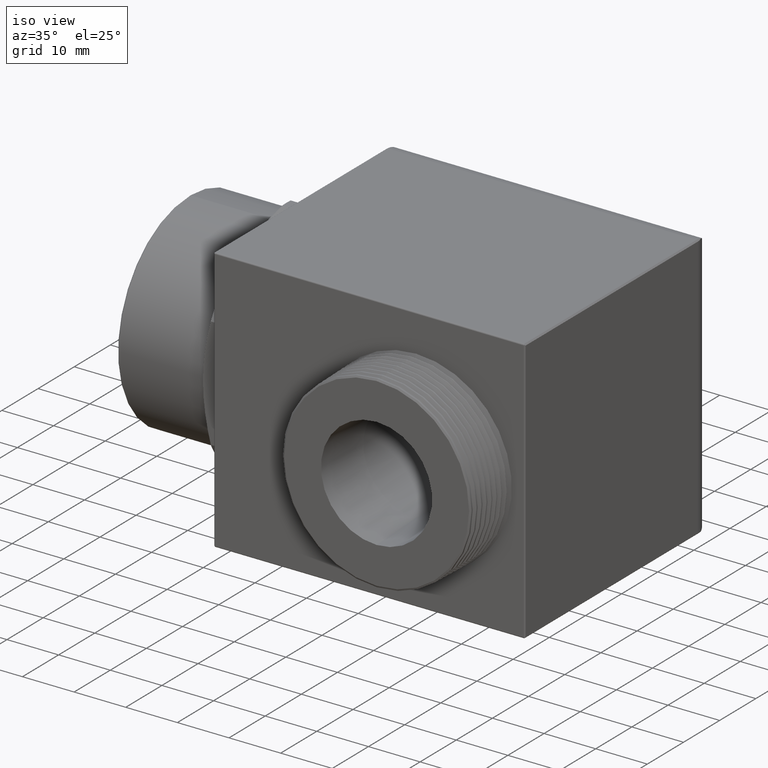
[diagram: clean part render]
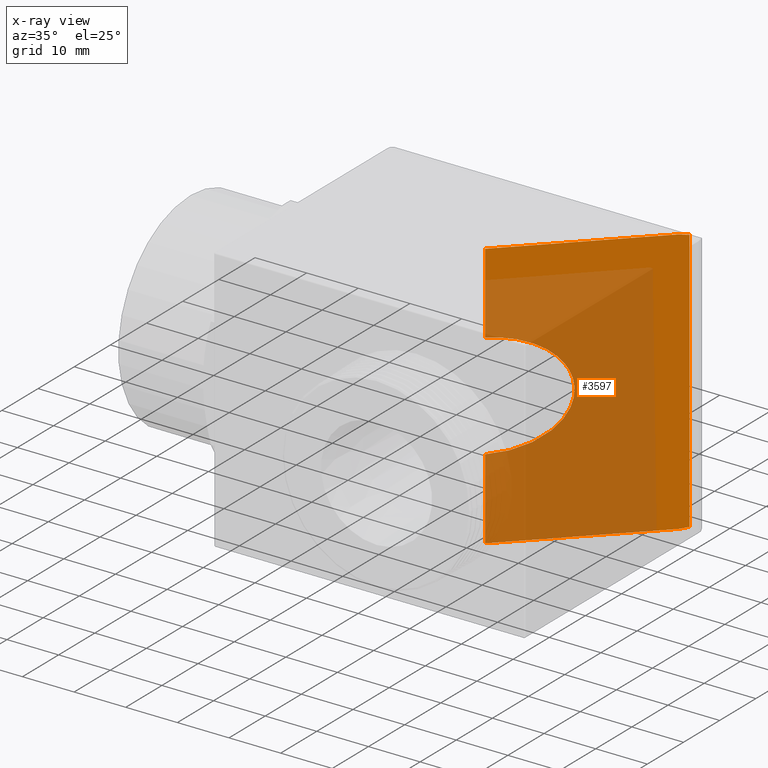
[diagram: x-ray — body ghosted, one internal face saturated and labeled with its STEP entity id]
A machine part, iso view, then the same camera in x-ray: the body is ghosted and one INTERNAL B-rep face — a face not visible from any outside direction — is saturated and labeled: STEP entity #3597.
In plain terms, the highlighted planar face has unit normal (-0.7071, 0.7071, 0).
Its self-contained STEP definition (entity closure, byte-faithful):
#140 = CARTESIAN_POINT ( 'NONE',  ( 0.9279999999999899400, 0.0000000000000000000, 0.4014999999999999100 ) ) ;
#189 = CARTESIAN_POINT ( 'NONE',  ( 0.9279999999999899400, 0.0000000000000000000, -0.4015000000000001900 ) ) ;
#564 = CARTESIAN_POINT ( 'NONE',  ( 1.844666666666666700, 0.9166666666666668500, 1.006564333633353400 ) ) ;
#565 =( BOUNDED_CURVE ( )  B_SPLINE_CURVE ( 3, ( #564, #616, #615, #614 ),
 .UNSPECIFIED., .F., .T. ) 
 B_SPLINE_CURVE_WITH_KNOTS ( ( 4, 4 ),
 ( 4.372552070930564300, 4.712388980384689700 ),
 .UNSPECIFIED. ) 
 CURVE ( )  GEOMETRIC_REPRESENTATION_ITEM ( )  RATIONAL_B_SPLINE_CURVE ( ( 1.000000000000000000, 0.9903990397689922400, 0.9903990397689922400, 1.000000000000000000 ) ) 
 REPRESENTATION_ITEM ( '' )  );
#566 = DIRECTION ( 'NONE',  ( 0.7071067811865512400, 0.7071067811865436900, 0.0000000000000000000 ) ) ;
#567 = VECTOR ( 'NONE', #566, 39.37007874015748900 ) ;
#568 = CARTESIAN_POINT ( 'NONE',  ( 1.893833333333333700, 0.9658333333333334300, 1.014999999999999900 ) ) ;
#569 = LINE ( 'NONE', #568, #567 ) ;
#593 = DIRECTION ( 'NONE',  ( 0.0000000000000000000, 0.0000000000000000000, 1.000000000000000000 ) ) ;
#594 = VECTOR ( 'NONE', #593, 39.37007874015748100 ) ;
#595 = CARTESIAN_POINT ( 'NONE',  ( 0.9279999999999899400, 0.0000000000000000000, -1.015393700787401400 ) ) ;
#596 = LINE ( 'NONE', #595, #594 ) ;
#597 = CARTESIAN_POINT ( 'NONE',  ( 0.9279999999999899400, 0.0000000000000000000, 1.014999999999999900 ) ) ;
#598 = DIRECTION ( 'NONE',  ( 0.0000000000000000000, 0.0000000000000000000, 1.000000000000000000 ) ) ;
#599 = VECTOR ( 'NONE', #598, 39.37007874015748100 ) ;
#600 = CARTESIAN_POINT ( 'NONE',  ( 0.9279999999999899400, 0.0000000000000000000, -1.015393700787401400 ) ) ;
#601 = LINE ( 'NONE', #600, #599 ) ;
#602 = DIRECTION ( 'NONE',  ( -0.7071067811865512400, -0.7071067811865436900, 0.0000000000000000000 ) ) ;
#603 = DIRECTION ( 'NONE',  ( -0.7071067811865438000, 0.7071067811865513500, 0.0000000000000000000 ) ) ;
#604 = CARTESIAN_POINT ( 'NONE',  ( 1.844666666666666700, 0.9166666666666668500, -1.015393700787401400 ) ) ;
#605 = AXIS2_PLACEMENT_3D ( 'NONE', #604, #603, #602 ) ;
#606 = PLANE ( 'NONE',  #605 ) ;
#607 = FACE_OUTER_BOUND ( 'NONE', #3602, .T. ) ;
#608 = CARTESIAN_POINT ( 'NONE',  ( 0.9279999999999899400, 0.0000000000000000000, -1.014999999999999900 ) ) ;
#614 = CARTESIAN_POINT ( 'NONE',  ( 1.795499999999999200, 0.8674999999999999400, 1.014999999999999900 ) ) ;
#615 = CARTESIAN_POINT ( 'NONE',  ( 1.812289557111489900, 0.8842895571114904900, 1.014999999999999900 ) ) ;
#616 = CARTESIAN_POINT ( 'NONE',  ( 1.828837320417795000, 0.9008373204177953000, 1.012160852670517500 ) ) ;
#617 = CARTESIAN_POINT ( 'NONE',  ( 1.795499999999999200, 0.8674999999999999400, -1.014999999999999900 ) ) ;
#618 = DIRECTION ( 'NONE',  ( 0.7071067811865512400, 0.7071067811865436900, 0.0000000000000000000 ) ) ;
#619 = VECTOR ( 'NONE', #618, 39.37007874015748900 ) ;
#620 = CARTESIAN_POINT ( 'NONE',  ( 1.893833333333333700, 0.9658333333333334300, -1.014999999999999900 ) ) ;
#621 = LINE ( 'NONE', #620, #619 ) ;
#622 = CARTESIAN_POINT ( 'NONE',  ( 0.9279999999999899400, 0.0000000000000000000, 0.4014999999999999100 ) ) ;
#623 = CARTESIAN_POINT ( 'NONE',  ( 1.730999999999998500, 0.8030000000000001600, 0.4014999999999997500 ) ) ;
#624 = CARTESIAN_POINT ( 'NONE',  ( 1.730999999999998500, 0.8029999999999998300, -0.4014999999999997500 ) ) ;
#625 = CARTESIAN_POINT ( 'NONE',  ( 0.9279999999999899400, 0.0000000000000000000, -0.4015000000000001900 ) ) ;
#626 =( BOUNDED_CURVE ( )  B_SPLINE_CURVE ( 3, ( #625, #624, #623, #622 ),
 .UNSPECIFIED., .F., .T. ) 
 B_SPLINE_CURVE_WITH_KNOTS ( ( 4, 4 ),
 ( 1.570796326794896800, 4.712388980384689700 ),
 .UNSPECIFIED. ) 
 CURVE ( )  GEOMETRIC_REPRESENTATION_ITEM ( )  RATIONAL_B_SPLINE_CURVE ( ( 1.000000000000000000, 0.3333333333333333100, 0.3333333333333333100, 1.000000000000000000 ) ) 
 REPRESENTATION_ITEM ( '' )  );
#627 = CARTESIAN_POINT ( 'NONE',  ( 1.844666666666666700, 0.9166666666666668500, 1.006564333633353400 ) ) ;
#637 = CARTESIAN_POINT ( 'NONE',  ( 1.795499999999999200, 0.8674999999999999400, 1.014999999999999900 ) ) ;
#638 = LINE ( 'NONE', #678, #677 ) ;
#646 = CARTESIAN_POINT ( 'NONE',  ( 1.844666666666666700, 0.9166666666666668500, -1.006564333633354100 ) ) ;
#647 = CARTESIAN_POINT ( 'NONE',  ( 1.828837320417795000, 0.9008373204177951800, -1.012160852670517700 ) ) ;
#648 = CARTESIAN_POINT ( 'NONE',  ( 1.812289557111490100, 0.8842895571114903800, -1.014999999999999900 ) ) ;
#649 = CARTESIAN_POINT ( 'NONE',  ( 1.795499999999999200, 0.8674999999999999400, -1.014999999999999900 ) ) ;
#650 =( BOUNDED_CURVE ( )  B_SPLINE_CURVE ( 3, ( #649, #648, #647, #646 ),
 .UNSPECIFIED., .F., .T. ) 
 B_SPLINE_CURVE_WITH_KNOTS ( ( 4, 4 ),
 ( 4.712388980384689700, 5.052225889838813300 ),
 .UNSPECIFIED. ) 
 CURVE ( )  GEOMETRIC_REPRESENTATION_ITEM ( )  RATIONAL_B_SPLINE_CURVE ( ( 1.000000000000000000, 0.9903990397689923500, 0.9903990397689923500, 1.000000000000000000 ) ) 
 REPRESENTATION_ITEM ( '' )  );
#651 = CARTESIAN_POINT ( 'NONE',  ( 1.844666666666666700, 0.9166666666666668500, -1.006564333633354100 ) ) ;
#676 = DIRECTION ( 'NONE',  ( 0.0000000000000000000, 0.0000000000000000000, 1.000000000000000000 ) ) ;
#677 = VECTOR ( 'NONE', #676, 39.37007874015748100 ) ;
#678 = CARTESIAN_POINT ( 'NONE',  ( 1.844666666666666700, 0.9166666666666668500, -1.015393700787401400 ) ) ;
#1914 = VERTEX_POINT ( 'NONE', #140 ) ;
#1943 = VERTEX_POINT ( 'NONE', #189 ) ;
#3593 = EDGE_CURVE ( 'NONE', #3603, #3615, #569, .T. ) ;
#3594 = EDGE_CURVE ( 'NONE', #3618, #3615, #565, .T. ) ;
#3596 = VERTEX_POINT ( 'NONE', #608 ) ;
#3597 = ADVANCED_FACE ( 'NONE', ( #607 ), #606, .T. ) ;
#3598 = ORIENTED_EDGE ( 'NONE', *, *, #3599, .T. ) ;
#3599 = EDGE_CURVE ( 'NONE', #1914, #3603, #601, .T. ) ;
#3602 = EDGE_LOOP ( 'NONE', ( #3614, #3607, #3598, #3606, #3611, #3661, #3631, #3628 ) ) ;
#3603 = VERTEX_POINT ( 'NONE', #597 ) ;
#3605 = EDGE_CURVE ( 'NONE', #3596, #1943, #596, .T. ) ;
#3606 = ORIENTED_EDGE ( 'NONE', *, *, #3593, .T. ) ;
#3607 = ORIENTED_EDGE ( 'NONE', *, *, #3619, .T. ) ;
#3611 = ORIENTED_EDGE ( 'NONE', *, *, #3594, .F. ) ;
#3614 = ORIENTED_EDGE ( 'NONE', *, *, #3605, .T. ) ;
#3615 = VERTEX_POINT ( 'NONE', #637 ) ;
#3618 = VERTEX_POINT ( 'NONE', #627 ) ;
#3619 = EDGE_CURVE ( 'NONE', #1943, #1914, #626, .T. ) ;
#3621 = EDGE_CURVE ( 'NONE', #3596, #3622, #621, .T. ) ;
#3622 = VERTEX_POINT ( 'NONE', #617 ) ;
#3628 = ORIENTED_EDGE ( 'NONE', *, *, #3621, .F. ) ;
#3629 = EDGE_CURVE ( 'NONE', #3622, #3630, #650, .T. ) ;
#3630 = VERTEX_POINT ( 'NONE', #651 ) ;
#3631 = ORIENTED_EDGE ( 'NONE', *, *, #3629, .F. ) ;
#3636 = EDGE_CURVE ( 'NONE', #3630, #3618, #638, .T. ) ;
#3661 = ORIENTED_EDGE ( 'NONE', *, *, #3636, .F. ) ;